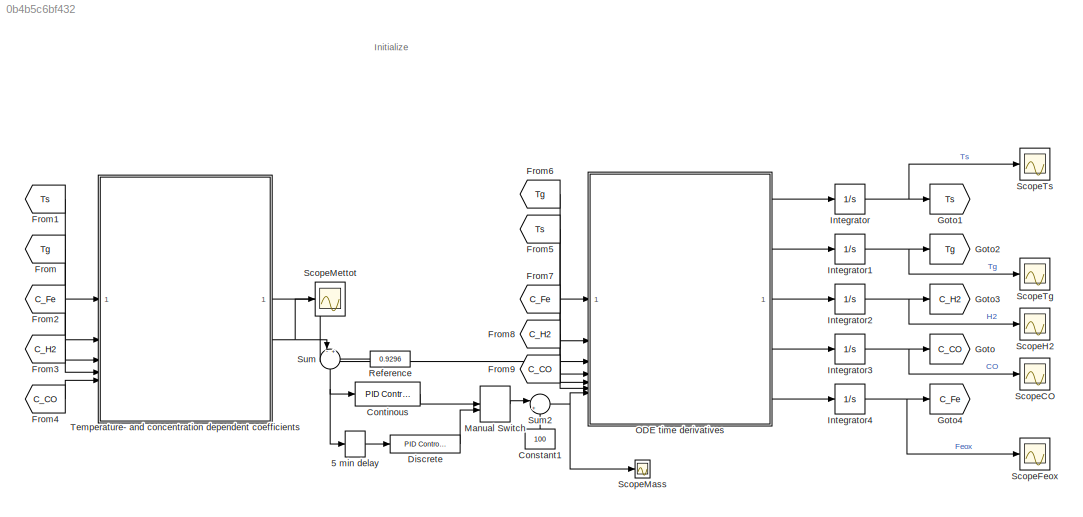
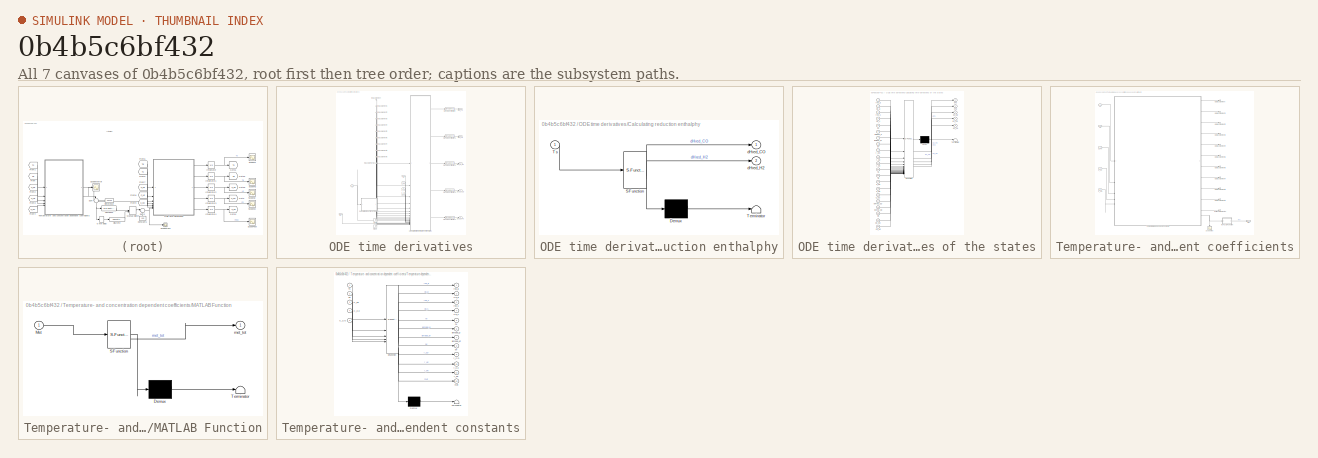
[diagram: thumbnail index - all 7 canvases of the model, root first then tree order]
MODEL slx_0b4b5c6bf432
KIND model
CONFIG AbsTol = auto
CONFIG EnableMultiTasking = off
CONFIG FixedStep = auto
CONFIG MaxStep = 1e-2
CONFIG MinStep = auto
CONFIG RelTol = 1e-3
CONFIG SampleTimeConstraint = Unconstrained
CONFIG SolverName = ode15s
CONFIG StartTime = 0.0
CONFIG StopTime = 40000
WORKSPACE source: external: MAT-File  (data not in archive)
BLOCK [TransportDelay] 5 min delay
  DelayTime = 300
  InitialOutput = 0.9296
BLOCK [Constant] Constant1
  NameLocation = right
  Value = 100
BLOCK [Reference] Continous  REF=slpidlib/PID Controller
  LibrarySourceBlock = simulink/Continuous/PID Controller
  SourceBlock = slpidlib/PID Controller
  SourceType = PID 1dof
BLOCK [Reference] Discrete  REF=slpidlib/PID Controller
  LibrarySourceBlock = simulink/Continuous/PID Controller
  SourceBlock = slpidlib/PID Controller
  SourceType = PID 1dof
BLOCK [From] From
  GotoTag = Tg
  TagVisibility = global
BLOCK [From] From1
  GotoTag = Ts
  TagVisibility = global
BLOCK [From] From2
  GotoTag = C_Fe
  TagVisibility = global
BLOCK [From] From3
  GotoTag = C_H2
  TagVisibility = global
BLOCK [From] From4
  GotoTag = C_CO
  TagVisibility = global
BLOCK [From] From5
  GotoTag = Ts
  TagVisibility = global
BLOCK [From] From6
  GotoTag = Tg
  TagVisibility = global
BLOCK [From] From7
  GotoTag = C_Fe
  TagVisibility = global
BLOCK [From] From8
  GotoTag = C_H2
  TagVisibility = global
BLOCK [From] From9
  GotoTag = C_CO
  TagVisibility = global
BLOCK [Goto] Goto
  GotoTag = C_CO
  TagVisibility = global
BLOCK [Goto] Goto1
  GotoTag = Ts
  TagVisibility = global
BLOCK [Goto] Goto2
  GotoTag = Tg
  TagVisibility = global
BLOCK [Goto] Goto3
  GotoTag = C_H2
  TagVisibility = global
BLOCK [Goto] Goto4
  GotoTag = C_Fe
  TagVisibility = global
BLOCK [Integrator] Integrator
BLOCK [Integrator] Integrator1
BLOCK [Integrator] Integrator2
BLOCK [Integrator] Integrator3
BLOCK [Integrator] Integrator4
BLOCK [ManualSwitch] Manual Switch
  CurrentSetting = 0
BLOCK [SubSystem] ODE time derivatives
BLOCK [Inport] ODE time derivatives/C_CO
  Port = 6
BLOCK [Inport] ODE time derivatives/C_Fe
  Port = 4
BLOCK [Inport] ODE time derivatives/C_H2
  Port = 5
BLOCK [SubSystem] ODE time derivatives/Calculating reduction enthalphy
  ErrorFcn = Stateflow.Translate.translate
  PermitHierarchicalResolution = ExplicitOnly
  SFBlockType = MATLAB Function
  TreatAsAtomicUnit = on
BLOCK [Demux] ODE time derivatives/Calculating reduction enthalphy/ Demux 
  Outputs = 1
BLOCK [S-Function] ODE time derivatives/Calculating reduction enthalphy/ SFunction 
  EnableBusSupport = on
  FunctionName = sf_sfun
  Parameters = CO,CO2,Fe,Feox,H2,H2O
  PortCounts = [1 3]
  SFcnIsStateOwnerBlock = off
  SFunctionDeploymentMode = off
  Tag = Stateflow S-Function 4
BLOCK [Terminator] ODE time derivatives/Calculating reduction enthalphy/ Terminator 
BLOCK [Inport] ODE time derivatives/Calculating reduction enthalphy/Ts
BLOCK [Outport] ODE time derivatives/Calculating reduction enthalphy/dHred_CO
BLOCK [Outport] ODE time derivatives/Calculating reduction enthalphy/dHred_H2
  Port = 2
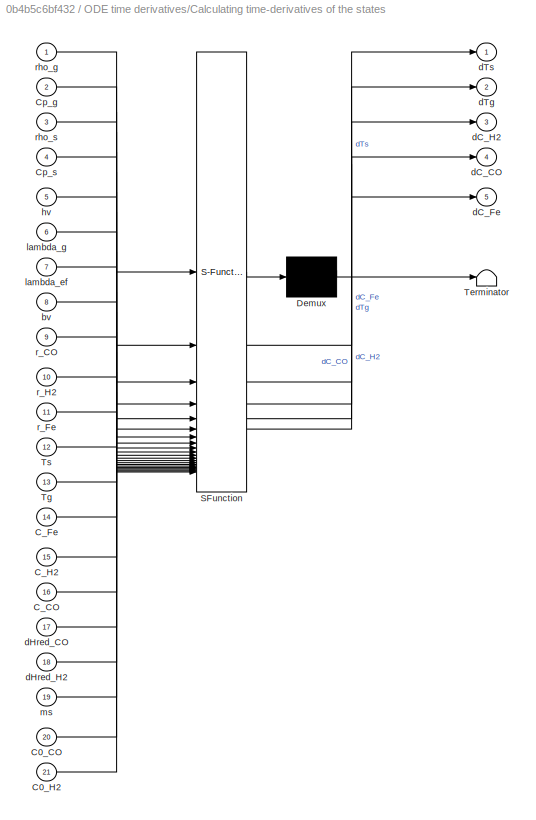
BLOCK [SubSystem] ODE time derivatives/Calculating time-derivatives of the states
  ErrorFcn = Stateflow.Translate.translate
  PermitHierarchicalResolution = ExplicitOnly
  SFBlockType = MATLAB Function
  TreatAsAtomicUnit = on
BLOCK [Demux] ODE time derivatives/Calculating time-derivatives of the states/ Demux 
  Outputs = 1
BLOCK [S-Function] ODE time derivatives/Calculating time-derivatives of the states/ SFunction 
  EnableBusSupport = on
  FunctionName = sf_sfun
  Parameters = Fe,var
  PortCounts = [21 6]
  SFcnIsStateOwnerBlock = off
  SFunctionDeploymentMode = off
  Tag = Stateflow S-Function 3
BLOCK [Terminator] ODE time derivatives/Calculating time-derivatives of the states/ Terminator 
BLOCK [Inport] ODE time derivatives/Calculating time-derivatives of the states/C0_CO
  Port = 20
BLOCK [Inport] ODE time derivatives/Calculating time-derivatives of the states/C0_H2
  Port = 21
BLOCK [Inport] ODE time derivatives/Calculating time-derivatives of the states/C_CO
  Port = 16
BLOCK [Inport] ODE time derivatives/Calculating time-derivatives of the states/C_Fe
  Port = 14
BLOCK [Inport] ODE time derivatives/Calculating time-derivatives of the states/C_H2
  Port = 15
BLOCK [Inport] ODE time derivatives/Calculating time-derivatives of the states/Cp_g
  Port = 2
BLOCK [Inport] ODE time derivatives/Calculating time-derivatives of the states/Cp_s
  Port = 4
BLOCK [Inport] ODE time derivatives/Calculating time-derivatives of the states/Tg
  Port = 13
BLOCK [Inport] ODE time derivatives/Calculating time-derivatives of the states/Ts
  Port = 12
BLOCK [Inport] ODE time derivatives/Calculating time-derivatives of the states/bv
  Port = 8
BLOCK [Outport] ODE time derivatives/Calculating time-derivatives of the states/dC_CO
  Port = 4
BLOCK [Outport] ODE time derivatives/Calculating time-derivatives of the states/dC_Fe
  Port = 5
BLOCK [Outport] ODE time derivatives/Calculating time-derivatives of the states/dC_H2
  Port = 3
BLOCK [Inport] ODE time derivatives/Calculating time-derivatives of the states/dHred_CO
  Port = 17
BLOCK [Inport] ODE time derivatives/Calculating time-derivatives of the states/dHred_H2
  Port = 18
BLOCK [Outport] ODE time derivatives/Calculating time-derivatives of the states/dTg
  Port = 2
BLOCK [Outport] ODE time derivatives/Calculating time-derivatives of the states/dTs
BLOCK [Inport] ODE time derivatives/Calculating time-derivatives of the states/hv
  Port = 5
BLOCK [Inport] ODE time derivatives/Calculating time-derivatives of the states/lambda_ef
  Port = 7
BLOCK [Inport] ODE time derivatives/Calculating time-derivatives of the states/lambda_g
  Port = 6
BLOCK [Inport] ODE time derivatives/Calculating time-derivatives of the states/ms
  Port = 19
BLOCK [Inport] ODE time derivatives/Calculating time-derivatives of the states/r_CO
  Port = 9
BLOCK [Inport] ODE time derivatives/Calculating time-derivatives of the states/r_Fe
  Port = 11
BLOCK [Inport] ODE time derivatives/Calculating time-derivatives of the states/r_H2
  Port = 10
BLOCK [Inport] ODE time derivatives/Calculating time-derivatives of the states/rho_g
BLOCK [Inport] ODE time derivatives/Calculating time-derivatives of the states/rho_s
  Port = 3
BLOCK [Outport] ODE time derivatives/Dot_C_CO
  Port = 4
BLOCK [Outport] ODE time derivatives/Dot_C_Fe
  Port = 5
BLOCK [Outport] ODE time derivatives/Dot_C_H2
  Port = 3
BLOCK [Outport] ODE time derivatives/Dot_Tg
  Port = 2
BLOCK [Outport] ODE time derivatives/Dot_Ts
BLOCK [Inport] ODE time derivatives/In Bus Element
  Port = 3
BLOCK [Inport] ODE time derivatives/In Bus Element1
  Port = 3
BLOCK [Inport] ODE time derivatives/In Bus Element10
  Port = 3
BLOCK [Inport] ODE time derivatives/In Bus Element2
  Port = 3
BLOCK [Inport] ODE time derivatives/In Bus Element3
  Port = 3
BLOCK [Inport] ODE time derivatives/In Bus Element4
  Port = 3
BLOCK [Inport] ODE time derivatives/In Bus Element5
  Port = 3
BLOCK [Inport] ODE time derivatives/In Bus Element6
  Port = 3
BLOCK [Inport] ODE time derivatives/In Bus Element7
  Port = 3
BLOCK [Inport] ODE time derivatives/In Bus Element8
  Port = 3
BLOCK [Inport] ODE time derivatives/In Bus Element9
  Port = 3
BLOCK [SignalSpecification] ODE time derivatives/Signal Specification
  Dimensions = [var.N,1]
BLOCK [SignalSpecification] ODE time derivatives/Signal Specification1
  Dimensions = [var.N,1]
BLOCK [SignalSpecification] ODE time derivatives/Signal Specification2
  Dimensions = [var.N,1]
BLOCK [SignalSpecification] ODE time derivatives/Signal Specification3
  Dimensions = [var.N,1]
BLOCK [SignalSpecification] ODE time derivatives/Signal Specification4
  Dimensions = [var.N,1]
BLOCK [Step] ODE time derivatives/Step
  After = var.C0_CO
  Before = var.C0_CO
  SampleTime = 0
  Time = 500
BLOCK [Step] ODE time derivatives/Step1
  After = 2.2859
  Before = var.C0_H2
  SampleTime = 0
  Time = 500
BLOCK [Inport] ODE time derivatives/Tg
BLOCK [Inport] ODE time derivatives/Ts
  Port = 2
BLOCK [Inport] ODE time derivatives/ms
  Port = 7
BLOCK [Constant] Reference
  NameLocation = top
  Value = 0.9296
BLOCK [Scope] ScopeCO
  Floating = off
  NumInputPorts = 1
  ScopeSpecificationString = Simulink.scopes.TimeScopeBlockCfg('CurrentConfiguration', extmgr.ConfigurationSet(extmgr.Configuration('Core','General UI',true,'FigureColor',[1 1 1]),extmgr.Configuration('Core','Source UI',true),extmgr.Configuration('Sources','WiredSimulink',true,'DataLoggingVariableName','COData','DataLogging',true,'DataLoggingSaveFormat','Structure','DataLoggingDecimateData',true,'DataLoggingDecimation','5e4')...<+4239ch>
BLOCK [Scope] ScopeFeox
  Floating = off
  NumInputPorts = 1
  ScopeSpecificationString = Simulink.scopes.TimeScopeBlockCfg('CurrentConfiguration', extmgr.ConfigurationSet(extmgr.Configuration('Core','General UI',true,'FigureColor',[1 1 1]),extmgr.Configuration('Core','Source UI',true),extmgr.Configuration('Sources','WiredSimulink',true,'DataLoggingVariableName','FeoxData','DataLogging',true,'DataLoggingSaveFormat','Structure','DataLoggingDecimateData',true,'DataLoggingDecimation','5e4...<+5223ch>
BLOCK [Scope] ScopeH2
  Floating = off
  NumInputPorts = 1
  ScopeSpecificationString = Simulink.scopes.TimeScopeBlockCfg('CurrentConfiguration', extmgr.ConfigurationSet(extmgr.Configuration('Core','General UI',true,'FigureColor',[1 1 1]),extmgr.Configuration('Core','Source UI',true),extmgr.Configuration('Sources','WiredSimulink',true,'DataLoggingVariableName','H2Data','DataLogging',true,'DataLoggingSaveFormat','Structure','DataLoggingDecimateData',true,'DataLoggingDecimation','5e4')...<+4237ch>
BLOCK [Scope] ScopeMass
  Floating = off
  NumInputPorts = 1
  ScopeSpecificationString = Simulink.scopes.TimeScopeBlockCfg('CurrentConfiguration', extmgr.ConfigurationSet(extmgr.Configuration('Core','General UI',true,'FigureColor',[1 1 1]),extmgr.Configuration('Core','Source UI',true),extmgr.Configuration('Sources','WiredSimulink',true,'DataLoggingVariableName','MassData','DataLogging',true,'DataLoggingDecimateData',true,'DataLoggingDecimation','1e4','DataLoggingSaveFormat','Structure...<+2583ch>
BLOCK [Scope] ScopeMettot
  Floating = off
  NumInputPorts = 1
  ScopeSpecificationString = Simulink.scopes.TimeScopeBlockCfg('CurrentConfiguration', extmgr.ConfigurationSet(extmgr.Configuration('Core','General UI',true,'FigureColor',[1 1 1]),extmgr.Configuration('Core','Source UI',true),extmgr.Configuration('Sources','WiredSimulink',true,'DataLoggingVariableName','Mettot','DataLogging',true,'DataLoggingDecimateData',true,'DataLoggingDecimation','1e4','DataLoggingSaveFormat','Structure')...<+2582ch>
BLOCK [Scope] ScopeTg
  Floating = off
  NumInputPorts = 1
  ScopeSpecificationString = Simulink.scopes.TimeScopeBlockCfg('CurrentConfiguration', extmgr.ConfigurationSet(extmgr.Configuration('Core','General UI',true,'FigureColor',[1 1 1]),extmgr.Configuration('Core','Source UI',true),extmgr.Configuration('Sources','WiredSimulink',true,'DataLoggingVariableName','TgData','DataLogging',true,'DataLoggingSaveFormat','Structure','DataLoggingDecimateData',true,'DataLoggingDecimation','5e4')...<+4597ch>
BLOCK [Scope] ScopeTs
  Floating = off
  NumInputPorts = 1
  ScopeSpecificationString = Simulink.scopes.TimeScopeBlockCfg('CurrentConfiguration', extmgr.ConfigurationSet(extmgr.Configuration('Core','General UI',true,'FigureColor',[1 1 1]),extmgr.Configuration('Core','Source UI',true),extmgr.Configuration('Sources','WiredSimulink',true,'DataLogging',true,'DataLoggingSaveFormat','Structure','DataLoggingVariableName','TsData','DataLoggingDecimateData',true,'DataLoggingDecimation','5e4')...<+4699ch>
BLOCK [Sum] Sum
  Inputs = -+
  NameLocation = left
BLOCK [Sum] Sum2
  Inputs = |++
BLOCK [SubSystem] Temperature- and concentration dependent coefficients
BLOCK [Inport] Temperature- and concentration dependent coefficients/C_CO
  Port = 5
BLOCK [Inport] Temperature- and concentration dependent coefficients/C_Fe
  Port = 3
BLOCK [Inport] Temperature- and concentration dependent coefficients/C_H2
  Port = 4
BLOCK [SubSystem] Temperature- and concentration dependent coefficients/MATLAB Function
  ErrorFcn = Stateflow.Translate.translate
  PermitHierarchicalResolution = ExplicitOnly
  SFBlockType = MATLAB Function
  TreatAsAtomicUnit = on
BLOCK [Demux] Temperature- and concentration dependent coefficients/MATLAB Function/ Demux 
  Outputs = 1
BLOCK [S-Function] Temperature- and concentration dependent coefficients/MATLAB Function/ SFunction 
  EnableBusSupport = on
  FunctionName = sf_sfun
  PortCounts = [1 2]
  SFcnIsStateOwnerBlock = off
  SFunctionDeploymentMode = off
  Tag = Stateflow S-Function 2
BLOCK [Terminator] Temperature- and concentration dependent coefficients/MATLAB Function/ Terminator 
BLOCK [Inport] Temperature- and concentration dependent coefficients/MATLAB Function/Met
BLOCK [Outport] Temperature- and concentration dependent coefficients/MATLAB Function/met_tot
BLOCK [Outport] Temperature- and concentration dependent coefficients/Met
  Port = 2
BLOCK [Outport] Temperature- and concentration dependent coefficients/Out Bus Element
BLOCK [Outport] Temperature- and concentration dependent coefficients/Out Bus Element1
BLOCK [Outport] Temperature- and concentration dependent coefficients/Out Bus Element10
BLOCK [Outport] Temperature- and concentration dependent coefficients/Out Bus Element2
BLOCK [Outport] Temperature- and concentration dependent coefficients/Out Bus Element3
BLOCK [Outport] Temperature- and concentration dependent coefficients/Out Bus Element4
BLOCK [Outport] Temperature- and concentration dependent coefficients/Out Bus Element5
BLOCK [Outport] Temperature- and concentration dependent coefficients/Out Bus Element6
BLOCK [Outport] Temperature- and concentration dependent coefficients/Out Bus Element7
BLOCK [Outport] Temperature- and concentration dependent coefficients/Out Bus Element8
BLOCK [Outport] Temperature- and concentration dependent coefficients/Out Bus Element9
BLOCK [Scope] Temperature- and concentration dependent coefficients/ScopeMet
  Floating = off
  NameLocation = left
  NumInputPorts = 1
  ScopeSpecificationString = Simulink.scopes.TimeScopeBlockCfg('CurrentConfiguration', extmgr.ConfigurationSet(extmgr.Configuration('Core','General UI',true,'FigureColor',[1 1 1]),extmgr.Configuration('Core','Source UI',true),extmgr.Configuration('Sources','WiredSimulink',true,'DataLoggingVariableName','ScopeData1','DataLogging',true,'DataLoggingDecimateData',true,'DataLoggingDecimation','5e4','DataLoggingSaveFormat','Structu...<+3791ch>
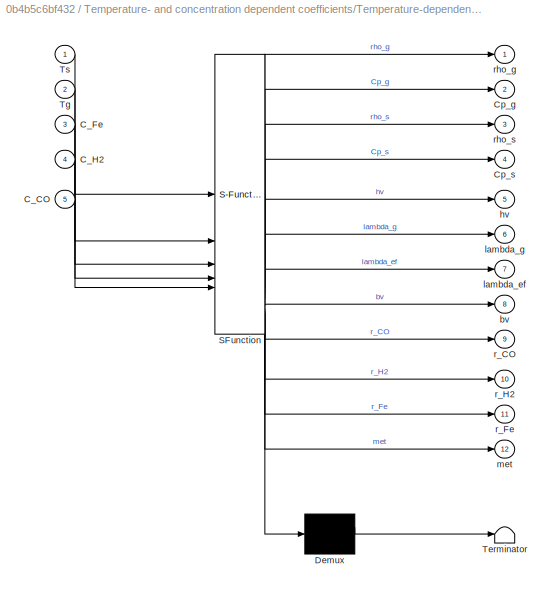
BLOCK [SubSystem] Temperature- and concentration dependent coefficients/Temperature-dependent constants
  ErrorFcn = Stateflow.Translate.translate
  PermitHierarchicalResolution = ExplicitOnly
  SFBlockType = MATLAB Function
  TreatAsAtomicUnit = on
BLOCK [Demux] Temperature- and concentration dependent coefficients/Temperature-dependent constants/ Demux 
  Outputs = 1
BLOCK [S-Function] Temperature- and concentration dependent coefficients/Temperature-dependent constants/ SFunction 
  EnableBusSupport = on
  FunctionName = sf_sfun
  Parameters = CO,Fe,Feox,H2,var
  PortCounts = [5 13]
  SFcnIsStateOwnerBlock = off
  SFunctionDeploymentMode = off
  Tag = Stateflow S-Function 1
BLOCK [Terminator] Temperature- and concentration dependent coefficients/Temperature-dependent constants/ Terminator 
BLOCK [Inport] Temperature- and concentration dependent coefficients/Temperature-dependent constants/C_CO
  Port = 5
BLOCK [Inport] Temperature- and concentration dependent coefficients/Temperature-dependent constants/C_Fe
  Port = 3
BLOCK [Inport] Temperature- and concentration dependent coefficients/Temperature-dependent constants/C_H2
  Port = 4
BLOCK [Outport] Temperature- and concentration dependent coefficients/Temperature-dependent constants/Cp_g
  Port = 2
BLOCK [Outport] Temperature- and concentration dependent coefficients/Temperature-dependent constants/Cp_s
  Port = 4
BLOCK [Inport] Temperature- and concentration dependent coefficients/Temperature-dependent constants/Tg
  Port = 2
BLOCK [Inport] Temperature- and concentration dependent coefficients/Temperature-dependent constants/Ts
BLOCK [Outport] Temperature- and concentration dependent coefficients/Temperature-dependent constants/bv
  Port = 8
BLOCK [Outport] Temperature- and concentration dependent coefficients/Temperature-dependent constants/hv
  Port = 5
BLOCK [Outport] Temperature- and concentration dependent coefficients/Temperature-dependent constants/lambda_ef
  Port = 7
BLOCK [Outport] Temperature- and concentration dependent coefficients/Temperature-dependent constants/lambda_g
  Port = 6
BLOCK [Outport] Temperature- and concentration dependent coefficients/Temperature-dependent constants/met
  Port = 12
BLOCK [Outport] Temperature- and concentration dependent coefficients/Temperature-dependent constants/r_CO
  Port = 9
BLOCK [Outport] Temperature- and concentration dependent coefficients/Temperature-dependent constants/r_Fe
  Port = 11
BLOCK [Outport] Temperature- and concentration dependent coefficients/Temperature-dependent constants/r_H2
  Port = 10
BLOCK [Outport] Temperature- and concentration dependent coefficients/Temperature-dependent constants/rho_g
BLOCK [Outport] Temperature- and concentration dependent coefficients/Temperature-dependent constants/rho_s
  Port = 3
BLOCK [Inport] Temperature- and concentration dependent coefficients/Tg
  Port = 2
BLOCK [Inport] Temperature- and concentration dependent coefficients/Ts
ANNOTATION (root): Initialize
LINE 5 min delay:1 -> Discrete:1
LINE Constant1:1 -> Sum2:2
LINE Continous:1 -> Manual Switch:1
LINE Discrete:1 -> Manual Switch:2
LINE From1:1 -> Temperature- and concentration dependent coefficients:1
LINE From2:1 -> Temperature- and concentration dependent coefficients:3
LINE From3:1 -> Temperature- and concentration dependent coefficients:4
LINE From4:1 -> Temperature- and concentration dependent coefficients:5
LINE From5:1 -> ODE time derivatives:2
LINE From6:1 -> ODE time derivatives:1
LINE From7:1 -> ODE time derivatives:4
LINE From8:1 -> ODE time derivatives:5
LINE From9:1 -> ODE time derivatives:6
LINE From:1 -> Temperature- and concentration dependent coefficients:2
NET Integrator1:1 -> Goto2:1, ScopeTg:1
NET Integrator2:1 -> Goto3:1, ScopeH2:1
NET Integrator3:1 -> Goto:1, ScopeCO:1
NET Integrator4:1 -> Goto4:1, ScopeFeox:1
NET Integrator:1 -> Goto1:1, ScopeTs:1
LINE Manual Switch:1 -> Sum2:1
LINE ODE time derivatives/C_CO:1 -> ODE time derivatives/Calculating time-derivatives of the states:16
LINE ODE time derivatives/C_Fe:1 -> ODE time derivatives/Calculating time-derivatives of the states:14
LINE ODE time derivatives/C_H2:1 -> ODE time derivatives/Calculating time-derivatives of the states:15
LINE ODE time derivatives/Calculating reduction enthalphy:1 -> ODE time derivatives/Calculating time-derivatives of the states:17
LINE ODE time derivatives/Calculating reduction enthalphy:2 -> ODE time derivatives/Calculating time-derivatives of the states:18
LINE ODE time derivatives/Calculating time-derivatives of the states:1 -> ODE time derivatives/Signal Specification:1
LINE ODE time derivatives/Calculating time-derivatives of the states:2 -> ODE time derivatives/Signal Specification1:1
LINE ODE time derivatives/Calculating time-derivatives of the states:3 -> ODE time derivatives/Signal Specification2:1
LINE ODE time derivatives/Calculating time-derivatives of the states:4 -> ODE time derivatives/Signal Specification3:1
LINE ODE time derivatives/Calculating time-derivatives of the states:5 -> ODE time derivatives/Signal Specification4:1
LINE ODE time derivatives/In Bus Element10:1 -> ODE time derivatives/Calculating time-derivatives of the states:11
LINE ODE time derivatives/In Bus Element1:1 -> ODE time derivatives/Calculating time-derivatives of the states:2
LINE ODE time derivatives/In Bus Element2:1 -> ODE time derivatives/Calculating time-derivatives of the states:3
LINE ODE time derivatives/In Bus Element3:1 -> ODE time derivatives/Calculating time-derivatives of the states:4
LINE ODE time derivatives/In Bus Element4:1 -> ODE time derivatives/Calculating time-derivatives of the states:5
LINE ODE time derivatives/In Bus Element5:1 -> ODE time derivatives/Calculating time-derivatives of the states:6
LINE ODE time derivatives/In Bus Element6:1 -> ODE time derivatives/Calculating time-derivatives of the states:7
LINE ODE time derivatives/In Bus Element7:1 -> ODE time derivatives/Calculating time-derivatives of the states:8
LINE ODE time derivatives/In Bus Element8:1 -> ODE time derivatives/Calculating time-derivatives of the states:9
LINE ODE time derivatives/In Bus Element9:1 -> ODE time derivatives/Calculating time-derivatives of the states:10
LINE ODE time derivatives/In Bus Element:1 -> ODE time derivatives/Calculating time-derivatives of the states:1
LINE ODE time derivatives/Signal Specification1:1 -> ODE time derivatives/Dot_Tg:1
LINE ODE time derivatives/Signal Specification2:1 -> ODE time derivatives/Dot_C_H2:1
LINE ODE time derivatives/Signal Specification3:1 -> ODE time derivatives/Dot_C_CO:1
LINE ODE time derivatives/Signal Specification4:1 -> ODE time derivatives/Dot_C_Fe:1
LINE ODE time derivatives/Signal Specification:1 -> ODE time derivatives/Dot_Ts:1
LINE ODE time derivatives/Step1:1 -> ODE time derivatives/Calculating time-derivatives of the states:21
LINE ODE time derivatives/Step:1 -> ODE time derivatives/Calculating time-derivatives of the states:20
LINE ODE time derivatives/Tg:1 -> ODE time derivatives/Calculating time-derivatives of the states:13
NET ODE time derivatives/Ts:1 -> ODE time derivatives/Calculating reduction enthalphy:1, ODE time derivatives/Calculating time-derivatives of the states:12
LINE ODE time derivatives/ms:1 -> ODE time derivatives/Calculating time-derivatives of the states:19
LINE ODE time derivatives:1 -> Integrator:1
LINE ODE time derivatives:2 -> Integrator1:1
LINE ODE time derivatives:3 -> Integrator2:1
LINE ODE time derivatives:4 -> Integrator3:1
LINE ODE time derivatives:5 -> Integrator4:1
LINE Reference:1 -> Sum:2
NET Sum2:1 -> ODE time derivatives:7, ScopeMass:1
NET Sum:1 -> 5 min delay:1, Continous:1
LINE Temperature- and concentration dependent coefficients/C_CO:1 -> Temperature- and concentration dependent coefficients/Temperature-dependent constants:5
LINE Temperature- and concentration dependent coefficients/C_Fe:1 -> Temperature- and concentration dependent coefficients/Temperature-dependent constants:3
LINE Temperature- and concentration dependent coefficients/C_H2:1 -> Temperature- and concentration dependent coefficients/Temperature-dependent constants:4
LINE Temperature- and concentration dependent coefficients/MATLAB Function:1 -> Temperature- and concentration dependent coefficients/Met:1
LINE Temperature- and concentration dependent coefficients/Temperature-dependent constants:1 -> Temperature- and concentration dependent coefficients/Out Bus Element:1
LINE Temperature- and concentration dependent coefficients/Temperature-dependent constants:10 -> Temperature- and concentration dependent coefficients/Out Bus Element9:1
LINE Temperature- and concentration dependent coefficients/Temperature-dependent constants:11 -> Temperature- and concentration dependent coefficients/Out Bus Element10:1
NET Temperature- and concentration dependent coefficients/Temperature-dependent constants:12 -> Temperature- and concentration dependent coefficients/MATLAB Function:1, Temperature- and concentration dependent coefficients/ScopeMet:1
LINE Temperature- and concentration dependent coefficients/Temperature-dependent constants:2 -> Temperature- and concentration dependent coefficients/Out Bus Element1:1
LINE Temperature- and concentration dependent coefficients/Temperature-dependent constants:3 -> Temperature- and concentration dependent coefficients/Out Bus Element2:1
LINE Temperature- and concentration dependent coefficients/Temperature-dependent constants:4 -> Temperature- and concentration dependent coefficients/Out Bus Element3:1
LINE Temperature- and concentration dependent coefficients/Temperature-dependent constants:5 -> Temperature- and concentration dependent coefficients/Out Bus Element4:1
LINE Temperature- and concentration dependent coefficients/Temperature-dependent constants:6 -> Temperature- and concentration dependent coefficients/Out Bus Element5:1
LINE Temperature- and concentration dependent coefficients/Temperature-dependent constants:7 -> Temperature- and concentration dependent coefficients/Out Bus Element6:1
LINE Temperature- and concentration dependent coefficients/Temperature-dependent constants:8 -> Temperature- and concentration dependent coefficients/Out Bus Element7:1
LINE Temperature- and concentration dependent coefficients/Temperature-dependent constants:9 -> Temperature- and concentration dependent coefficients/Out Bus Element8:1
LINE Temperature- and concentration dependent coefficients/Tg:1 -> Temperature- and concentration dependent coefficients/Temperature-dependent constants:2
LINE Temperature- and concentration dependent coefficients/Ts:1 -> Temperature- and concentration dependent coefficients/Temperature-dependent constants:1
LINE Temperature- and concentration dependent coefficients:1 -> ODE time derivatives:3
NET Temperature- and concentration dependent coefficients:2 -> ScopeMettot:1, Sum:1
note: NET lines group one-source signal fan-out (src -> all destinations, sorted); 1:1 wires keep LINE
CHART ODE time derivatives/Calculating time-derivatives of the states states=1 transitions=1
  STATE_LABEL 'eML_blk_kernel()'
  STATE_LABEL 'SCRIPT:\nfunction [dTs,dTg, dC_H2, dC_CO, dC_Fe] = fcn(rho_g, Cp_g, rho_s, Cp_s,...\n    hv, lambda_g, lambda_ef, bv, r_CO, r_H2, r_Fe, Ts, Tg, C_Fe, C_H2, C_CO...\n    ,dHred_CO,dHred_H2,var,ms,Fe,C0_CO,C0_H2)\n\n% This function block calculates the time derivative values of temperature\n% and concentration, for all inner nodes and end-nodes.\n\n\nQvv = var.Qv*abs(r_Fe)*var.np; \n\n%%%% Expressions if exper...<+2867ch>'
CHART ODE time derivatives/Calculating reduction enthalphy states=1 transitions=1
  STATE_LABEL 'eML_blk_kernel()'
  STATE_LABEL "SCRIPT:\nfunction [dHred_CO, dHred_H2] = fcn(Ts, H2, CO, H2O, CO2, Fe, Feox)\n\n\n% Calulated the reduction enthalpy for all reactions, based on the temperature-\n% intergral of the specific heat capacity of the materials\n\n\nCPint_H2 = interp1(H2.T,H2.CPint,Ts,'linear','extrap');\nCPint_H2O = interp1(H2O.T,H2O.CPint,Ts,'linear','extrap');\nCPint_CO = interp1(CO.T,CO.CPint,Ts,'linear','extrap');\nCPint_CO2 ...<+403ch>"
CHART Temperature- and concentration
dependent coefficients/Temperature-dependent constants states=1 transitions=1
  STATE_LABEL 'eML_blk_kernel()'
  STATE_LABEL 'SCRIPT:\nfunction [rho_g,Cp_g,rho_s,Cp_s,hv,lambda_g,lambda_ef,bv,r_CO,r_H2,r_Fe,met]...\n         = fcn(Ts, Tg, C_Fe, C_H2, C_CO, CO, Fe, Feox, H2, var)\n \n% This function block calculates all necessary coefficients used in the \n% time-derivatives, based on thermal and concentration dependent material\n% parameters.\n\n%%%%%%%%%% Interpolate from tabulated values %%%%%%%%%%%%%%\nCP_Fe = mean(interp1(Fe....<+3463ch>'
CHART Temperature- and concentration
dependent coefficients/MATLAB Function states=1 transitions=1
  STATE_LABEL 'eML_blk_kernel()'
  STATE_LABEL 'SCRIPT:\nfunction met_tot = fcn(Met)\n\nmet_tot = 2*Met(1) - Met(2);\n'
CHART  states=0 transitions=0
CHART  states=0 transitions=0
CHART  states=0 transitions=0
CHART  states=0 transitions=0
